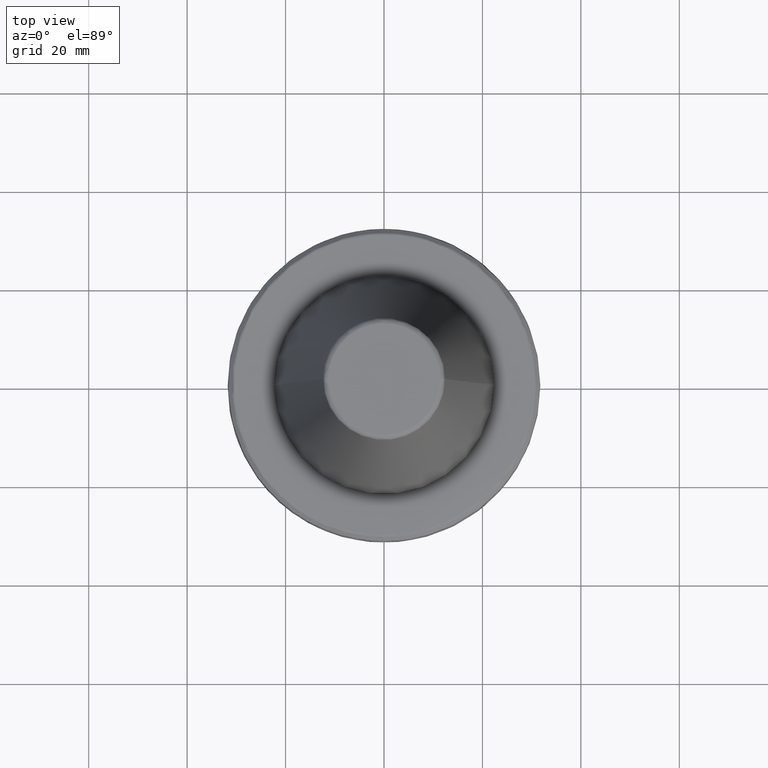
[diagram: clean part render]
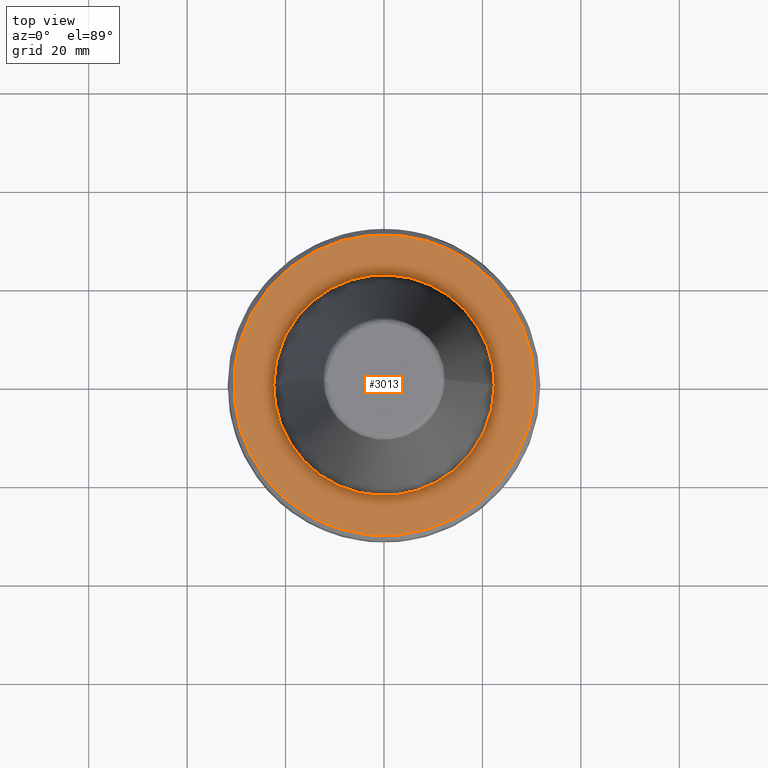
[diagram: same view with one face highlighted and labeled with its STEP entity id]
A machine part, top view. The second image highlights one B-rep face of the part: STEP entity #3013.
In plain terms, the highlighted planar face has unit normal (0, 0, 1).
Its self-contained STEP definition (entity closure, byte-faithful):
#2 = CARTESIAN_POINT ( 'NONE',  ( -4.699014149692110300, 21.90294337551173600, -3.200000000000003300 ) ) ;
#11 = CARTESIAN_POINT ( 'NONE',  ( 27.38773233231631100, 13.61336996243403300, -3.200000000000003300 ) ) ;
#14 = CARTESIAN_POINT ( 'NONE',  ( 27.52628396581385700, 13.33348093168116200, -3.200000000000003300 ) ) ;
#32 = CARTESIAN_POINT ( 'NONE',  ( 27.83926536633852300, 12.67616131522054000, -3.200000000000002800 ) ) ;
#33 = CIRCLE ( 'NONE', #2028, 30.58431457505073700 ) ;
#46 = CARTESIAN_POINT ( 'NONE',  ( 28.42400519017609300, 11.34454123681687000, -3.200000000000002800 ) ) ;
#53 = CARTESIAN_POINT ( 'NONE',  ( 28.85454279253097500, 10.17404257735812800, -3.200000000000003300 ) ) ;
#63 = B_SPLINE_CURVE_WITH_KNOTS ( 'NONE', 3,
 ( #2185, #2121, #2631, #2037, #1000, #1807, #1444, #2480, #1993, #1377, #848, #2035, #2514, #946, #1888, #2100, #1523, #2437, #1556, #2965, #2558, #1740, #835, #2226, #864, #3034, #2966, #1847, #1763, #860, #1695, #2730, #2825, #1995, #2215, #2270, #2023, #2175, #2077, #1620, #2541, #2797, #2467, #1690, #2510, #2450, #2372, #1959, #2284, #1026, #854, #1602 ),
 .UNSPECIFIED., .F., .F.,
 ( 4, 1, 1, 1, 1, 2, 2, 1, 1, 1, 1, 2, 2, 1, 1, 1, 2, 2, 2, 1, 1, 1, 2, 2, 1, 1, 1, 1, 2, 2, 1, 1, 1, 1, 2, 2, 4 ),
 ( 0.0000000000000000000, 0.06250000000000058300, 0.09375000000000081900, 0.1093750000000009300, 0.1171875000000009300, 0.1210937500000008600, 0.1250000000000008000, 0.1874999999999994200, 0.2187499999999987200, 0.2343749999999984700, 0.2421874999999982500, 0.2460937499999981700, 0.2499999999999980600, 0.3124999999999981700, 0.3437499999999981700, 0.3593749999999983300, 0.3671874999999984500, 0.3749999999999985000, 0.4999999999999995600, 0.5625000000000000000, 0.5937500000000003300, 0.6093750000000003300, 0.6171875000000004400, 0.6250000000000004400, 0.6875000000000018900, 0.7187500000000025500, 0.7343750000000030000, 0.7421875000000030000, 0.7460937500000031100, 0.7500000000000031100, 0.8125000000000035500, 0.8437500000000037700, 0.8593750000000038900, 0.8671875000000038900, 0.8710937500000037700, 0.8750000000000036600, 1.000000000000000000 ),
 .UNSPECIFIED. ) ;
#74 = ORIENTED_EDGE ( 'NONE', *, *, #554, .T. ) ;
#76 = CARTESIAN_POINT ( 'NONE',  ( 29.12613594597996800, 9.331192961517656300, -3.200000000000003300 ) ) ;
#84 = VERTEX_POINT ( 'NONE', #129 ) ;
#89 = ORIENTED_EDGE ( 'NONE', *, *, #1317, .T. ) ;
#98 = CARTESIAN_POINT ( 'NONE',  ( 29.14115916764732700, 9.284161809028004700, -3.200000000000003700 ) ) ;
#122 = CARTESIAN_POINT ( 'NONE',  ( 29.17179097118738100, 9.187465360208456400, -3.200000000000003700 ) ) ;
#129 = CARTESIAN_POINT ( 'NONE',  ( -24.35467712833948900, -18.49999999999999600, -3.200000000000002400 ) ) ;
#137 = CARTESIAN_POINT ( 'NONE',  ( 29.21737119052021500, 9.042334779816329200, -3.200000000000002800 ) ) ;
#153 = CARTESIAN_POINT ( 'NONE',  ( 29.32115263378955900, 8.703095408761718900, -3.200000000000003300 ) ) ;
#157 = CARTESIAN_POINT ( 'NONE',  ( 10.24629117988110100, 28.85918037032592300, -3.200000000000003700 ) ) ;
#160 = CARTESIAN_POINT ( 'NONE',  ( -30.26424933310271500, 4.488890650628819800, -3.200000000000003300 ) ) ;
#164 = CARTESIAN_POINT ( 'NONE',  ( 29.51842591296566500, 8.022211266093926000, -3.200000000000004600 ) ) ;
#168 = CARTESIAN_POINT ( 'NONE',  ( -29.45234853339660600, 8.333223866083306700, -3.200000000000004600 ) ) ;
#173 = CARTESIAN_POINT ( 'NONE',  ( -12.57918310160740600, 18.53468170720509500, -3.200000000000003300 ) ) ;
#174 = CARTESIAN_POINT ( 'NONE',  ( 13.20180910046462600, 27.58831379343334700, -3.200000000000003300 ) ) ;
#179 = CARTESIAN_POINT ( 'NONE',  ( 29.87181404186765500, 6.650821378524042900, -3.200000000000003700 ) ) ;
#180 = VERTEX_POINT ( 'NONE', #1646 ) ;
#185 = CARTESIAN_POINT ( 'NONE',  ( 11.69968984089582900, 28.30117587103452300, -3.200000000000003300 ) ) ;
#189 = CARTESIAN_POINT ( 'NONE',  ( 8.750000000000035500, 29.30593451889330200, -3.200000000000003700 ) ) ;
#193 = CARTESIAN_POINT ( 'NONE',  ( -25.85726144149171900, 16.33427142386347000, -3.200000000000002400 ) ) ;
#199 = CARTESIAN_POINT ( 'NONE',  ( 13.29323302808701800, 27.54438001541626900, -3.200000000000003300 ) ) ;
#205 = CARTESIAN_POINT ( 'NONE',  ( 13.15427429998630300, 27.61100680695608700, -3.200000000000003300 ) ) ;
#210 = CARTESIAN_POINT ( 'NONE',  ( 13.43017972972252500, 27.47815279795928600, -3.200000000000003700 ) ) ;
#214 = CARTESIAN_POINT ( 'NONE',  ( 30.10416084472612000, 5.458850156776770200, -3.200000000000002400 ) ) ;
#225 = CARTESIAN_POINT ( 'NONE',  ( 13.74839770495214700, 27.32133677087344400, -3.200000000000003300 ) ) ;
#231 = CARTESIAN_POINT ( 'NONE',  ( -22.03380064768137800, 4.033863417743302400, -3.200000000000005100 ) ) ;
#232 = CARTESIAN_POINT ( 'NONE',  ( 14.37953634106523800, 26.99856130462357100, -3.200000000000003700 ) ) ;
#239 = CARTESIAN_POINT ( 'NONE',  ( 15.62062435590670100, 26.31643672381107300, -3.200000000000002800 ) ) ;
#242 = CARTESIAN_POINT ( 'NONE',  ( 16.64808964168274100, 25.66906082886423200, -3.200000000000003300 ) ) ;
#244 = CARTESIAN_POINT ( 'NONE',  ( -22.05288208987398900, 3.928562165309797300, -3.200000000000004200 ) ) ;
#245 = CARTESIAN_POINT ( 'NONE',  ( 17.40274506739860900, 25.15049554832921100, -3.200000000000004200 ) ) ;
#255 = CARTESIAN_POINT ( 'NONE',  ( 17.48831565732787000, 25.09107183108732300, -3.200000000000003300 ) ) ;
#258 = CARTESIAN_POINT ( 'NONE',  ( 17.35872434408172500, 25.18089566416657000, -3.200000000000003700 ) ) ;
#260 = CARTESIAN_POINT ( 'NONE',  ( -23.77638626440863200, 19.23818591258016800, -3.200000000000002800 ) ) ;
#263 = CARTESIAN_POINT ( 'NONE',  ( 17.91356280168702900, 24.79077054223963500, -3.200000000000002800 ) ) ;
#268 = CARTESIAN_POINT ( 'NONE',  ( 18.50078877828214300, 24.36043102576069300, -3.200000000000002000 ) ) ;
#273 = CARTESIAN_POINT ( 'NONE',  ( 17.61641936751653500, 25.00162825174337700, -3.200000000000003300 ) ) ;
#277 = CARTESIAN_POINT ( 'NONE',  ( 30.23542110148163400, 4.606748291944690300, -3.200000000000003300 ) ) ;
#291 = CARTESIAN_POINT ( 'NONE',  ( 30.24244276878575700, 4.560403435829464100, -3.200000000000002800 ) ) ;
#295 = CARTESIAN_POINT ( 'NONE',  ( 8.750000000000035500, 29.30593451889330200, -3.200000000000003700 ) ) ;
#305 = CARTESIAN_POINT ( 'NONE',  ( 30.25683737115480200, 4.463908765844214700, -3.200000000000002400 ) ) ;
#311 = CARTESIAN_POINT ( 'NONE',  ( 30.27808101819946900, 4.319140586104094100, -3.200000000000003700 ) ) ;
#315 = CARTESIAN_POINT ( 'NONE',  ( -22.35325503156639800, 1.708173286752138400, -3.200000000000002800 ) ) ;
#319 = CARTESIAN_POINT ( 'NONE',  ( -4.388029393849129700, 21.96633915484307300, -3.200000000000002800 ) ) ;
#320 = CARTESIAN_POINT ( 'NONE',  ( 30.32521173240780900, 3.981164943374724300, -3.200000000000002800 ) ) ;
#338 = CARTESIAN_POINT ( 'NONE',  ( 30.40972197857451000, 3.304480764572967900, -3.200000000000003700 ) ) ;
#342 = CARTESIAN_POINT ( 'NONE',  ( 30.53973774190788100, 1.948180833597381600, -3.200000000000002800 ) ) ;
#362 = CARTESIAN_POINT ( 'NONE',  ( 19.64699716448906800, 23.46525560291689100, -3.200000000000004200 ) ) ;
#365 = CARTESIAN_POINT ( 'NONE',  ( 20.58104395212357900, 22.63882571496066400, -3.200000000000004200 ) ) ;
#373 = CARTESIAN_POINT ( 'NONE',  ( 21.33423715766128100, 21.91487604513691800, -3.200000000000003300 ) ) ;
#375 = CARTESIAN_POINT ( 'NONE',  ( 21.48502183608933100, 21.76708313658278400, -3.200000000000003700 ) ) ;
#380 = CARTESIAN_POINT ( 'NONE',  ( -24.26260340260872200, 18.63100279129394100, -3.200000000000002400 ) ) ;
#383 = CARTESIAN_POINT ( 'NONE',  ( 21.25737027114945800, 21.98943496480558600, -3.200000000000002800 ) ) ;
#387 = CARTESIAN_POINT ( 'NONE',  ( 22.22623960063043200, 21.01696416254424100, -3.200000000000003300 ) ) ;
#397 = CARTESIAN_POINT ( 'NONE',  ( 27.24785232259033300, 13.89121605744732700, -3.200000000000003700 ) ) ;
#407 = CARTESIAN_POINT ( 'NONE',  ( 21.70996927686695300, 21.54431431266114700, -3.200000000000002800 ) ) ;
#412 = CARTESIAN_POINT ( 'NONE',  ( 23.22435209595334600, 19.93203895177796200, -3.200000000000003300 ) ) ;
#419 = CARTESIAN_POINT ( 'NONE',  ( -19.50355204636557000, 23.59206616272732000, -3.200000000000002800 ) ) ;
#422 = CARTESIAN_POINT ( 'NONE',  ( -21.64494739377256500, 5.846925097341269000, -3.200000000000004200 ) ) ;
#423 = CARTESIAN_POINT ( 'NONE',  ( 27.29438307719384900, 13.79955834375779000, -3.200000000000003300 ) ) ;
#428 = CARTESIAN_POINT ( 'NONE',  ( -18.25550594148859300, 24.54047191476733000, -3.200000000000002400 ) ) ;
#429 = CARTESIAN_POINT ( 'NONE',  ( 25.53517509612518700, 16.91770336013805900, -3.200000000000003300 ) ) ;
#433 = CARTESIAN_POINT ( 'NONE',  ( -16.73340307639270800, 25.61393462947303900, -3.200000000000002400 ) ) ;
#434 = CARTESIAN_POINT ( 'NONE',  ( 24.02085740245178900, 18.95028892449413500, -3.200000000000003700 ) ) ;
#437 = CARTESIAN_POINT ( 'NONE',  ( 30.58431457505076500, 0.0000000000000000000, -3.200000000000002400 ) ) ;
#438 = CARTESIAN_POINT ( 'NONE',  ( -16.93238115507141800, 14.74595008207439100, -3.200000000000002800 ) ) ;
#442 = CARTESIAN_POINT ( 'NONE',  ( 26.42690957760426000, 15.48792760818621200, -3.200000000000004200 ) ) ;
#444 = DIRECTION ( 'NONE',  ( -1.000000000000000000, 0.0000000000000000000, 8.791504485627631900E-016 ) ) ;
#450 = CARTESIAN_POINT ( 'NONE',  ( 30.58431457505076200, 0.7806124812661845400, -3.200000000000003300 ) ) ;
#474 = CARTESIAN_POINT ( 'NONE',  ( -20.84466756721494800, 8.201342719091011100, -3.200000000000003300 ) ) ;
#482 = CARTESIAN_POINT ( 'NONE',  ( -29.12987215590598900, -9.340167935438387300, -3.200000000000003700 ) ) ;
#498 = CARTESIAN_POINT ( 'NONE',  ( -21.26570261125549500, 7.054554276574882500, -3.200000000000003300 ) ) ;
#501 = EDGE_CURVE ( 'NONE', #981, #616, #63, .T. ) ;
#505 = CIRCLE ( 'NONE', #2009, 30.58431457505073700 ) ;
#511 = CARTESIAN_POINT ( 'NONE',  ( 8.750000000000003600, -29.30593451889330600, -3.200000000000003700 ) ) ;
#534 = CARTESIAN_POINT ( 'NONE',  ( -30.58574494882476100, -0.1069271607229632700, -3.200000000000003300 ) ) ;
#535 = CARTESIAN_POINT ( 'NONE',  ( -22.12829487097974400, 3.485869751756840900, -3.200000000000003700 ) ) ;
#554 = EDGE_CURVE ( 'NONE', #2941, #2290, #1848, .T. ) ;
#574 = CARTESIAN_POINT ( 'NONE',  ( -18.85174391189674700, 12.09879233629482400, -3.200000000000003700 ) ) ;
#591 = CARTESIAN_POINT ( 'NONE',  ( -17.90272195339482400, 13.55154730279589800, -3.200000000000002800 ) ) ;
#594 = CARTESIAN_POINT ( 'NONE',  ( -22.39999999999999900, 2.743208830090071000E-015, -3.200000000000002800 ) ) ;
#595 = CARTESIAN_POINT ( 'NONE',  ( -22.40000000000000200, -1.370271814672537000, -3.200000000000003300 ) ) ;
#597 = CARTESIAN_POINT ( 'NONE',  ( -22.27534675084375200, -2.728929272683257200, -3.200000000000003700 ) ) ;
#599 = CARTESIAN_POINT ( 'NONE',  ( -22.02214483849513000, -4.097019922490617600, -3.200000000000003300 ) ) ;
#601 = CARTESIAN_POINT ( 'NONE',  ( -18.00675945254527800, 24.72355445175143300, -3.200000000000003700 ) ) ;
#604 = CARTESIAN_POINT ( 'NONE',  ( -22.01774244189307000, -4.120618964789384700, -3.200000000000004600 ) ) ;
#606 = CARTESIAN_POINT ( 'NONE',  ( -22.00934566656799900, -4.165236834190293900, -3.200000000000004200 ) ) ;
#608 = CARTESIAN_POINT ( 'NONE',  ( -21.99665153889350200, -4.232134916935223100, -3.200000000000003300 ) ) ;
#612 = CARTESIAN_POINT ( 'NONE',  ( -21.96633915484489900, -4.388029393845010300, -3.200000000000002400 ) ) ;
#613 = CARTESIAN_POINT ( 'NONE',  ( -21.90294337551515700, -4.699014149684408000, -3.200000000000002400 ) ) ;
#614 = CARTESIAN_POINT ( 'NONE',  ( 0.6848705029346544600, 22.40001621477894400, -3.200000000000003300 ) ) ;
#616 = VERTEX_POINT ( 'NONE', #881 ) ;
#617 = CARTESIAN_POINT ( 'NONE',  ( -21.76506777192550100, -5.317766869442518600, -3.200000000000003300 ) ) ;
#619 = CARTESIAN_POINT ( 'NONE',  ( -21.44498038502552400, -6.542405141275941600, -3.200000000000003700 ) ) ;
#622 = CARTESIAN_POINT ( 'NONE',  ( -21.09461488816156600, -7.570037086819792400, -3.200000000000003300 ) ) ;
#625 = CARTESIAN_POINT ( 'NONE',  ( -20.81054813477575000, -8.287526769646335700, -3.200000000000004600 ) ) ;
#627 = CARTESIAN_POINT ( 'NONE',  ( -20.79228629974538800, -8.333249188847371900, -3.200000000000003700 ) ) ;
#630 = CARTESIAN_POINT ( 'NONE',  ( -20.75691791007927700, -8.420970184736862800, -3.200000000000003700 ) ) ;
#633 = CARTESIAN_POINT ( 'NONE',  ( -20.70346857996706500, -8.552344979799164200, -3.200000000000002800 ) ) ;
#634 = CARTESIAN_POINT ( 'NONE',  ( -20.57597625708056900, -8.857439276874359300, -3.200000000000003300 ) ) ;
#639 = CARTESIAN_POINT ( 'NONE',  ( -20.30988273414216700, -9.461840305410650100, -3.200000000000003300 ) ) ;
#642 = CARTESIAN_POINT ( 'NONE',  ( -19.73326017960384200, -10.64749210002691100, -3.200000000000003300 ) ) ;
#643 = ORIENTED_EDGE ( 'NONE', *, *, #956, .T. ) ;
#644 = CARTESIAN_POINT ( 'NONE',  ( -19.16283711800834800, -11.62407890262997300, -3.200000000000004200 ) ) ;
#648 = CARTESIAN_POINT ( 'NONE',  ( -18.69693224295897600, -12.33667592247683800, -3.200000000000003300 ) ) ;
#650 = CARTESIAN_POINT ( 'NONE',  ( -18.64241366108287700, -12.41893087788208100, -3.200000000000002800 ) ) ;
#654 = CARTESIAN_POINT ( 'NONE',  ( -18.53468170720844600, -12.57918310160406400, -3.200000000000003700 ) ) ;
#655 = CARTESIAN_POINT ( 'NONE',  ( -18.37163761273726700, -12.81838125885408700, -3.200000000000003300 ) ) ;
#656 = CARTESIAN_POINT ( 'NONE',  ( -22.39999999999999900, 2.743208830090071000E-015, -3.200000000000002800 ) ) ;
#657 = CARTESIAN_POINT ( 'NONE',  ( -17.98107824668787200, -13.36824904410699900, -3.200000000000003300 ) ) ;
#659 = CARTESIAN_POINT ( 'NONE',  ( -17.15946693212253000, -14.43493962129083400, -3.200000000000003300 ) ) ;
#662 = CARTESIAN_POINT ( 'NONE',  ( -16.38581280683807900, -15.29259727032501500, -3.200000000000002800 ) ) ;
#663 = CARTESIAN_POINT ( 'NONE',  ( -14.74595008205984400, -16.93238115508596000, -3.200000000000003300 ) ) ;
#666 = CARTESIAN_POINT ( 'NONE',  ( -13.55154730280065300, -17.90272195339007800, -3.200000000000004200 ) ) ;
#668 = CARTESIAN_POINT ( 'NONE',  ( -12.17662042414134900, -18.80157304491702400, -3.200000000000003300 ) ) ;
#674 = CARTESIAN_POINT ( 'NONE',  ( -12.09879233629750000, -18.85174391189518800, -3.200000000000003300 ) ) ;
#675 = CARTESIAN_POINT ( 'NONE',  ( -11.93926672244148300, -18.95319761216261500, -3.200000000000003700 ) ) ;
#677 = CARTESIAN_POINT ( 'NONE',  ( -11.69915882733113200, -19.10378740223375300, -3.200000000000003700 ) ) ;
#679 = CARTESIAN_POINT ( 'NONE',  ( -11.13317075178937000, -19.44402825675649600, -3.200000000000003300 ) ) ;
#681 = CARTESIAN_POINT ( 'NONE',  ( -9.978249319568748300, -20.07996867656229900, -3.200000000000003300 ) ) ;
#684 = CARTESIAN_POINT ( 'NONE',  ( -8.948981895716038100, -20.54870396912782100, -3.200000000000003300 ) ) ;
#685 = CARTESIAN_POINT ( 'NONE',  ( -8.201342719090337900, -20.84466756721534600, -3.200000000000003300 ) ) ;
#692 = CARTESIAN_POINT ( 'NONE',  ( -8.160831267537076900, -20.86055755904984100, -3.200000000000003700 ) ) ;
#695 = CARTESIAN_POINT ( 'NONE',  ( -8.076228125966544300, -20.89346074650031000, -3.200000000000002800 ) ) ;
#696 = CARTESIAN_POINT ( 'NONE',  ( -7.949210498689112100, -20.94241909987511400, -3.200000000000003300 ) ) ;
#703 = CARTESIAN_POINT ( 'NONE',  ( -7.652045630590357900, -21.05388026314313900, -3.200000000000003300 ) ) ;
#707 = CARTESIAN_POINT ( 'NONE',  ( -7.054554276587077200, -21.26570261125323600, -3.200000000000003300 ) ) ;
#711 = CARTESIAN_POINT ( 'NONE',  ( -5.846925097357520000, -21.64494739376955200, -3.200000000000003300 ) ) ;
#712 = CARTESIAN_POINT ( 'NONE',  ( -4.790134707349893400, -21.89390021243405800, -3.200000000000003300 ) ) ;
#715 = CARTESIAN_POINT ( 'NONE',  ( -4.053654801115866000, -22.03016962878430400, -3.200000000000003300 ) ) ;
#720 = CARTESIAN_POINT ( 'NONE',  ( -4.033857983397038700, -22.03380165318767700, -3.200000000000003300 ) ) ;
#722 = CARTESIAN_POINT ( 'NONE',  ( -3.991735474929086100, -22.04147173132551900, -3.200000000000004200 ) ) ;
#725 = CARTESIAN_POINT ( 'NONE',  ( -3.928543594394218200, -22.05288552601365700, -3.200000000000003700 ) ) ;
#726 = CARTESIAN_POINT ( 'NONE',  ( -3.781039048315599300, -22.07887845598923700, -3.200000000000003300 ) ) ;
#729 = CARTESIAN_POINT ( 'NONE',  ( -3.485802656836038500, -22.12830728541986500, -3.200000000000002800 ) ) ;
#733 = CARTESIAN_POINT ( 'NONE',  ( -2.894420676587548900, -22.21693682219911600, -3.200000000000003300 ) ) ;
#734 = CARTESIAN_POINT ( 'NONE',  ( -1.708019926933151300, -22.35328340742955100, -3.200000000000003700 ) ) ;
#738 = CARTESIAN_POINT ( 'NONE',  ( -0.6848705029595145700, -22.40001621477894400, -3.200000000000003700 ) ) ;
#743 = CARTESIAN_POINT ( 'NONE',  ( 1.369741005919025600, -22.39996757044212200, -3.200000000000002400 ) ) ;
#746 = CARTESIAN_POINT ( 'NONE',  ( 2.729104585128947900, -22.27531430456797800, -3.200000000000003300 ) ) ;
#749 = CARTESIAN_POINT ( 'NONE',  ( 4.097017183233652400, -22.02214534546819300, -3.200000000000003700 ) ) ;
#750 = CARTESIAN_POINT ( 'NONE',  ( 4.120618964788525000, -22.01774244189322300, -3.200000000000004200 ) ) ;
#753 = CARTESIAN_POINT ( 'NONE',  ( 4.165236834188593000, -22.00934566656831500, -3.200000000000002800 ) ) ;
#755 = CARTESIAN_POINT ( 'NONE',  ( 4.232134916932282400, -21.99665153889404900, -3.200000000000002800 ) ) ;
#758 = CARTESIAN_POINT ( 'NONE',  ( 4.388029393839321600, -21.96633915484595100, -3.200000000000003300 ) ) ;
#762 = CARTESIAN_POINT ( 'NONE',  ( 4.699014149673790700, -21.90294337551711800, -3.200000000000002800 ) ) ;
#768 = CARTESIAN_POINT ( 'NONE',  ( 5.317766869424311000, -21.76506777192885900, -3.200000000000003300 ) ) ;
#797 = CARTESIAN_POINT ( 'NONE',  ( -25.94001894739803400, 16.20252111302018600, -3.200000000000003300 ) ) ;
#818 = CARTESIAN_POINT ( 'NONE',  ( 14.43493962127408600, -17.15946693213492600, -3.200000000000003300 ) ) ;
#820 = CARTESIAN_POINT ( 'NONE',  ( 15.29259727031543800, -16.38581280684516300, -3.200000000000003300 ) ) ;
#826 = CARTESIAN_POINT ( 'NONE',  ( -28.24048383202959700, -11.74385340892200000, -3.200000000000003300 ) ) ;
#835 = CARTESIAN_POINT ( 'NONE',  ( 21.03152593329596300, -22.20554153729255000, -3.200000000000004200 ) ) ;
#848 = CARTESIAN_POINT ( 'NONE',  ( 14.91898429065702600, -26.72045296950977200, -3.200000000000004200 ) ) ;
#854 = CARTESIAN_POINT ( 'NONE',  ( 30.58431457505076900, -1.561562219138746600, -3.200000000000003300 ) ) ;
#860 = CARTESIAN_POINT ( 'NONE',  ( 26.85489300923698900, -14.63881711982947200, -3.200000000000003300 ) ) ;
#864 = CARTESIAN_POINT ( 'NONE',  ( 22.40114452915676000, -20.89129424433190300, -3.200000000000004200 ) ) ;
#881 = CARTESIAN_POINT ( 'NONE',  ( 30.58431457505076500, 0.0000000000000000000, -3.200000000000002400 ) ) ;
#886 = B_SPLINE_CURVE_WITH_KNOTS ( 'NONE', 3,
 ( #2817, #2636, #315, #1786, #535, #2017, #244, #2612, #231, #1440, #1122, #422, #498, #2218, #1462, #2447, #2569, #474, #1579, #2678, #1590, #1239, #2732, #574, #2134, #591, #438, #1113, #1824, #1952, #1918, #173, #2998, #2103, #2907, #1289, #2565, #938, #1771, #2115, #2342, #2222, #3076, #1448, #2773, #2, #319, #923, #2554, #1206, #1528, #2858, #2714, #614, #903, #3083, #3081, #3077, #3074, #3072, #3069, #3068, #3065, #3063, #3055, #3051, #3047, #3045, #3036, #3031, #3029, #3027, #3023, #3019, #3015, #3008, #3005, #2999, #2996, #2990, #2986, #2982, #2972, #2967, #2964, #2957, #2953, #2946, #2939, #2930, #2924, #2921, #2914, #2910, #2905, #2901, #2898, #2894, #2890, #2886, #2882, #2880, #2871, #2865, #2863, #2861 ),
 .UNSPECIFIED., .F., .F.,
 ( 4, 1, 1, 1, 1, 1, 2, 2, 1, 1, 1, 1, 2, 2, 1, 1, 1, 2, 2, 2, 1, 1, 1, 2, 2, 1, 1, 1, 1, 2, 2, 1, 1, 1, 1, 1, 2, 2, 2, 1, 1, 1, 1, 1, 2, 2, 1, 1, 1, 1, 2, 2, 1, 1, 1, 2, 2, 2, 1, 1, 1, 2, 2, 1, 1, 1, 1, 2, 2, 1, 1, 1, 1, 1, 2, 2, 4 ),
 ( 0.0000000000000000000, 0.03124999999999894500, 0.04687499999999843200, 0.05468749999999818900, 0.05859374999999806400, 0.06054687499999800200, 0.06152343749999798100, 0.06249999999999794600, 0.09374999999999758500, 0.1093749999999973800, 0.1171874999999972500, 0.1210937499999971600, 0.1230468749999971600, 0.1249999999999971400, 0.1562499999999969500, 0.1718749999999969200, 0.1796874999999969200, 0.1835937499999970300, 0.1874999999999971100, 0.2499999999999980000, 0.2812499999999983900, 0.2968749999999985600, 0.3046874999999987200, 0.3085937499999987800, 0.3124999999999988900, 0.3437499999999991100, 0.3593749999999992200, 0.3671874999999993300, 0.3710937499999993900, 0.3730468749999993900, 0.3749999999999993900, 0.4062499999999988900, 0.4218749999999986100, 0.4296874999999985000, 0.4335937499999983900, 0.4355468749999983300, 0.4365234374999983300, 0.4374999999999982800, 0.4999999999999980000, 0.5312499999999977800, 0.5468749999999977800, 0.5546874999999976700, 0.5585937499999976700, 0.5605468749999976700, 0.5615234374999975600, 0.5624999999999975600, 0.5937499999999977800, 0.6093749999999980000, 0.6171874999999980000, 0.6210937499999981100, 0.6230468749999982200, 0.6249999999999982200, 0.6562499999999984500, 0.6718749999999986700, 0.6796874999999986700, 0.6835937499999987800, 0.6874999999999988900, 0.7499999999999980000, 0.7812499999999975600, 0.7968749999999974500, 0.8046874999999973400, 0.8085937499999973400, 0.8124999999999973400, 0.8437499999999973400, 0.8593749999999974500, 0.8671874999999974500, 0.8710937499999974500, 0.8730468749999974500, 0.8749999999999973400, 0.9062499999999981100, 0.9218749999999986700, 0.9296874999999987800, 0.9335937499999988900, 0.9355468749999990000, 0.9365234374999988900, 0.9374999999999988900, 1.000000000000000000 ),
 .UNSPECIFIED. ) ;
#896 = EDGE_LOOP ( 'NONE', ( #1609, #2263, #89, #1399, #74, #1370, #2959 ) ) ;
#903 = CARTESIAN_POINT ( 'NONE',  ( 1.708019926889657400, 22.35328340742955100, -3.200000000000003300 ) ) ;
#913 = EDGE_CURVE ( 'NONE', #2941, #84, #2224, .T. ) ;
#923 = CARTESIAN_POINT ( 'NONE',  ( -4.232134916937351200, 21.99665153889256400, -3.200000000000003300 ) ) ;
#938 = CARTESIAN_POINT ( 'NONE',  ( -8.857439276880176800, 20.57597625707865100, -3.200000000000003300 ) ) ;
#946 = CARTESIAN_POINT ( 'NONE',  ( 17.02330348438782800, -25.40916637816813400, -3.200000000000003300 ) ) ;
#954 = CARTESIAN_POINT ( 'NONE',  ( -27.05153356262100300, -14.47569103931619200, -3.200000000000004200 ) ) ;
#956 = EDGE_CURVE ( 'NONE', #1378, #2040, #2353, .T. ) ;
#979 = CARTESIAN_POINT ( 'NONE',  ( -29.39627059819993700, -8.442993445765720800, -3.200000000000004200 ) ) ;
#981 = VERTEX_POINT ( 'NONE', #511 ) ;
#990 = CARTESIAN_POINT ( 'NONE',  ( 22.40000000000000200, -0.6849581371417888800, -3.200000000000003700 ) ) ;
#1000 = CARTESIAN_POINT ( 'NONE',  ( 12.49063015166474800, -27.91867295084679100, -3.200000000000003700 ) ) ;
#1008 = CARTESIAN_POINT ( 'NONE',  ( -10.51070166330259200, -28.78023418526411000, -3.200000000000003300 ) ) ;
#1011 = CARTESIAN_POINT ( 'NONE',  ( -12.21006217782009500, -28.10145510426028900, -3.200000000000002800 ) ) ;
#1014 = CARTESIAN_POINT ( 'NONE',  ( -18.50000000000001100, -24.35467712833946100, -3.200000000000002400 ) ) ;
#1026 = CARTESIAN_POINT ( 'NONE',  ( 30.46544302000310000, -3.113852862822880300, -3.200000000000004200 ) ) ;
#1032 = B_SPLINE_CURVE_WITH_KNOTS ( 'NONE', 3,
 ( #437, #450, #342, #338, #320, #311, #305, #291, #277, #214, #179, #164, #153, #137, #122, #98, #76, #53, #46, #32, #14, #11, #423, #397, #442, #429, #434, #412, #387, #407, #375, #373, #383, #365, #362, #268, #263, #273, #255, #245, #258, #242, #239, #232, #225, #210, #199, #174, #205, #185, #157, #189 ),
 .UNSPECIFIED., .F., .F.,
 ( 4, 1, 1, 1, 1, 2, 2, 1, 1, 1, 1, 2, 2, 1, 1, 1, 2, 2, 2, 1, 1, 1, 2, 2, 1, 1, 1, 1, 2, 2, 1, 1, 1, 1, 2, 2, 4 ),
 ( 0.0000000000000000000, 0.06249999999999900100, 0.09374999999999850100, 0.1093749999999982500, 0.1171874999999981300, 0.1210937499999980600, 0.1249999999999980000, 0.1874999999999973900, 0.2187499999999970000, 0.2343749999999968100, 0.2421874999999967000, 0.2460937499999967200, 0.2499999999999967200, 0.3124999999999976100, 0.3437499999999980000, 0.3593749999999981100, 0.3671874999999981100, 0.3749999999999981100, 0.4999999999999963400, 0.5624999999999955600, 0.5937499999999951200, 0.6093749999999950000, 0.6171874999999950000, 0.6249999999999950000, 0.6874999999999958900, 0.7187499999999962300, 0.7343749999999965600, 0.7421874999999966700, 0.7460937499999968900, 0.7499999999999970000, 0.8124999999999966700, 0.8437499999999963400, 0.8593749999999962300, 0.8671874999999962300, 0.8710937499999963400, 0.8749999999999963400, 1.000000000000000000 ),
 .UNSPECIFIED. ) ;
#1040 = CARTESIAN_POINT ( 'NONE',  ( 21.89390021243320900, -4.790134707354472900, -3.200000000000002800 ) ) ;
#1041 = CARTESIAN_POINT ( 'NONE',  ( -30.36703951688853600, -3.848954711222602600, -3.200000000000003300 ) ) ;
#1051 = CARTESIAN_POINT ( 'NONE',  ( 6.542405141251660600, -21.44498038503001800, -3.200000000000003300 ) ) ;
#1060 = CARTESIAN_POINT ( 'NONE',  ( 12.41893087787976500, -18.64241366108458600, -3.200000000000002800 ) ) ;
#1083 = CARTESIAN_POINT ( 'NONE',  ( 22.39999999999999900, 0.0000000000000000000, -3.200000000000002800 ) ) ;
#1100 = CARTESIAN_POINT ( 'NONE',  ( 18.95319761216143900, -11.93926672244327800, -3.200000000000003300 ) ) ;
#1102 = CARTESIAN_POINT ( 'NONE',  ( 12.81838125884675600, -18.37163761274268800, -3.200000000000003300 ) ) ;
#1113 = CARTESIAN_POINT ( 'NONE',  ( -15.29259727033228500, 16.38581280683081000, -3.200000000000004600 ) ) ;
#1122 = CARTESIAN_POINT ( 'NONE',  ( -21.89390021243578500, 4.790134707340608400, -3.200000000000003700 ) ) ;
#1130 = CARTESIAN_POINT ( 'NONE',  ( 0.0000000000000000000, -1.695656695567372900E-016, -3.200000000000003300 ) ) ;
#1141 = VERTEX_POINT ( 'NONE', #295 ) ;
#1148 = CARTESIAN_POINT ( 'NONE',  ( 9.461840305391049800, -20.30988273415392000, -3.200000000000002400 ) ) ;
#1153 = CARTESIAN_POINT ( 'NONE',  ( -29.60519698499863500, -7.688059179553588000, -3.200000000000003300 ) ) ;
#1154 = CARTESIAN_POINT ( 'NONE',  ( 8.857439276862924900, -20.57597625708742200, -3.200000000000003700 ) ) ;
#1203 = CARTESIAN_POINT ( 'NONE',  ( -28.05674127324226300, -12.17478045277748000, -3.200000000000003300 ) ) ;
#1206 = CARTESIAN_POINT ( 'NONE',  ( -4.120618964790005600, 22.01774244189279300, -3.200000000000004200 ) ) ;
#1239 = CARTESIAN_POINT ( 'NONE',  ( -19.10378740223865900, 11.69915882732268200, -3.200000000000003300 ) ) ;
#1289 = CARTESIAN_POINT ( 'NONE',  ( -10.64749210004020900, 19.73326017959945800, -3.200000000000003300 ) ) ;
#1315 = CARTESIAN_POINT ( 'NONE',  ( -17.03706203158652200, -25.46593605708777400, -3.200000000000003300 ) ) ;
#1317 = EDGE_CURVE ( 'NONE', #180, #84, #1865, .T. ) ;
#1320 = CARTESIAN_POINT ( 'NONE',  ( -15.48610090928483800, -26.43773944750343900, -3.200000000000003700 ) ) ;
#1332 = CARTESIAN_POINT ( 'NONE',  ( -30.54018886217401300, 1.756429892695191100, -3.200000000000003300 ) ) ;
#1334 = CARTESIAN_POINT ( 'NONE',  ( -30.46677238502211100, 2.680059272107268200, -3.200000000000003700 ) ) ;
#1348 = AXIS2_PLACEMENT_3D ( 'NONE', #1715, #2039, #2916 ) ;
#1368 = AXIS2_PLACEMENT_3D ( 'NONE', #1130, #2995, #2984 ) ;
#1370 = ORIENTED_EDGE ( 'NONE', *, *, #1548, .F. ) ;
#1377 = CARTESIAN_POINT ( 'NONE',  ( 13.84330885027150300, -27.28410426008013100, -3.200000000000004200 ) ) ;
#1378 = VERTEX_POINT ( 'NONE', #1083 ) ;
#1399 = ORIENTED_EDGE ( 'NONE', *, *, #913, .F. ) ;
#1404 = CARTESIAN_POINT ( 'NONE',  ( -13.53928854119992500, 27.43651020383373100, -3.200000000000003300 ) ) ;
#1431 = CARTESIAN_POINT ( 'NONE',  ( 16.93238115510510200, -14.74595008204568100, -3.200000000000002400 ) ) ;
#1438 = CARTESIAN_POINT ( 'NONE',  ( -20.45246270161813100, 22.77429056695521900, -3.200000000000003700 ) ) ;
#1440 = CARTESIAN_POINT ( 'NONE',  ( -22.03016962878425400, 4.053654801116158200, -3.200000000000003700 ) ) ;
#1444 = CARTESIAN_POINT ( 'NONE',  ( 12.93363446211676000, -27.71504625243736400, -3.200000000000003300 ) ) ;
#1448 = CARTESIAN_POINT ( 'NONE',  ( -6.542405141293531100, 21.44498038501770800, -3.200000000000003300 ) ) ;
#1451 = CARTESIAN_POINT ( 'NONE',  ( -29.86976700630908300, -6.624788100354390300, -3.200000000000002800 ) ) ;
#1462 = CARTESIAN_POINT ( 'NONE',  ( -20.94241909987582100, 7.949210498685300100, -3.200000000000003300 ) ) ;
#1463 = EDGE_CURVE ( 'NONE', #180, #1141, #33, .T. ) ;
#1469 = EDGE_CURVE ( 'NONE', #2040, #1378, #886, .T. ) ;
#1505 = CARTESIAN_POINT ( 'NONE',  ( -28.14951867898409100, -11.95872026362524600, -3.200000000000003700 ) ) ;
#1523 = CARTESIAN_POINT ( 'NONE',  ( 17.27398592321871400, -25.23910393720905200, -3.200000000000003300 ) ) ;
#1528 = CARTESIAN_POINT ( 'NONE',  ( -4.097017183233237600, 22.02214534546820300, -3.200000000000004200 ) ) ;
#1531 = CARTESIAN_POINT ( 'NONE',  ( 8.287526769647206100, -20.81054813477557300, -3.200000000000002800 ) ) ;
#1548 = EDGE_CURVE ( 'NONE', #981, #2290, #505, .T. ) ;
#1556 = CARTESIAN_POINT ( 'NONE',  ( 19.00230350498631200, -23.99031363756920500, -3.200000000000002800 ) ) ;
#1570 = CARTESIAN_POINT ( 'NONE',  ( 17.90272195338066700, -13.55154730281504500, -3.200000000000003300 ) ) ;
#1579 = CARTESIAN_POINT ( 'NONE',  ( -20.54870396913424800, 8.948981895704992700, -3.200000000000004200 ) ) ;
#1585 = CARTESIAN_POINT ( 'NONE',  ( -17.50055599938205500, 25.08445269892678600, -3.200000000000002800 ) ) ;
#1587 = CARTESIAN_POINT ( 'NONE',  ( 22.03380064768137800, -4.033863417743300600, -3.200000000000005100 ) ) ;
#1590 = CARTESIAN_POINT ( 'NONE',  ( -19.44402825676491300, 11.13317075177488400, -3.200000000000002800 ) ) ;
#1597 = CARTESIAN_POINT ( 'NONE',  ( -23.17496761740861200, 19.96233499371088600, -3.200000000000003300 ) ) ;
#1602 = CARTESIAN_POINT ( 'NONE',  ( 30.58431457505076500, 0.0000000000000000000, -3.200000000000002400 ) ) ;
#1609 = ORIENTED_EDGE ( 'NONE', *, *, #2495, .T. ) ;
#1610 = CARTESIAN_POINT ( 'NONE',  ( -28.31907149282430000, 11.80488663222952500, -3.200000000000003300 ) ) ;
#1620 = CARTESIAN_POINT ( 'NONE',  ( 29.07806852478255200, -9.479920520524320400, -3.200000000000003300 ) ) ;
#1633 = CARTESIAN_POINT ( 'NONE',  ( 22.21691554030176600, -2.894535696451787700, -3.200000000000003700 ) ) ;
#1646 = CARTESIAN_POINT ( 'NONE',  ( -8.749999999999991100, 29.30593451889331300, -3.200000000000002800 ) ) ;
#1649 = CARTESIAN_POINT ( 'NONE',  ( -23.67667543167917900, 19.36078262650630300, -3.200000000000003300 ) ) ;
#1658 = CARTESIAN_POINT ( 'NONE',  ( 7.570037086805924400, -21.09461488816414500, -3.200000000000004600 ) ) ;
#1671 = CARTESIAN_POINT ( 'NONE',  ( -24.35467712833948900, -18.49999999999999600, -3.200000000000002400 ) ) ;
#1690 = CARTESIAN_POINT ( 'NONE',  ( 29.98396483372960800, -6.054356345076334900, -3.200000000000003300 ) ) ;
#1695 = CARTESIAN_POINT ( 'NONE',  ( 27.00399422413344300, -14.35953925149365800, -3.200000000000002400 ) ) ;
#1715 = CARTESIAN_POINT ( 'NONE',  ( 2.081668171172171400E-014, 0.0000000000000000000, -3.199999999999973500 ) ) ;
#1728 = ORIENTED_EDGE ( 'NONE', *, *, #1469, .T. ) ;
#1734 = CARTESIAN_POINT ( 'NONE',  ( 20.54870396912526700, -8.948981895719937200, -3.200000000000003300 ) ) ;
#1740 = CARTESIAN_POINT ( 'NONE',  ( 20.87982665236080100, -22.34825637511706700, -3.200000000000002800 ) ) ;
#1743 = CARTESIAN_POINT ( 'NONE',  ( -30.47970956005925200, 2.528533460620644700, -3.200000000000003700 ) ) ;
#1747 = CARTESIAN_POINT ( 'NONE',  ( 22.35325503156640500, -1.708173286752136400, -3.200000000000003700 ) ) ;
#1763 = CARTESIAN_POINT ( 'NONE',  ( 26.49728736114817500, -15.28437999708491700, -3.200000000000004200 ) ) ;
#1769 = DIRECTION ( 'NONE',  ( -8.728168432587708200E-016, -0.0000000000000000000, -1.000000000000000000 ) ) ;
#1771 = CARTESIAN_POINT ( 'NONE',  ( -8.552344979802288800, 20.70346857996603900, -3.200000000000003700 ) ) ;
#1786 = CARTESIAN_POINT ( 'NONE',  ( -22.21691554030176600, 2.894535696451789400, -3.200000000000002800 ) ) ;
#1796 = CARTESIAN_POINT ( 'NONE',  ( 20.94241909987477300, -7.949210498690993300, -3.200000000000003300 ) ) ;
#1803 = CARTESIAN_POINT ( 'NONE',  ( -28.44688173161173200, -11.24038425294348200, -3.200000000000003300 ) ) ;
#1807 = CARTESIAN_POINT ( 'NONE',  ( 12.80099507031209800, -27.77681930598248900, -3.200000000000002400 ) ) ;
#1810 = CARTESIAN_POINT ( 'NONE',  ( 20.84466756721549900, -8.201342719090085600, -3.200000000000003300 ) ) ;
#1824 = CARTESIAN_POINT ( 'NONE',  ( -14.43493962130356300, 17.15946693210979700, -3.200000000000003300 ) ) ;
#1842 = CARTESIAN_POINT ( 'NONE',  ( -28.08831770798318700, -12.10176357993493600, -3.200000000000003700 ) ) ;
#1847 = CARTESIAN_POINT ( 'NONE',  ( 25.74326481164887400, -16.55116382281662300, -3.200000000000003300 ) ) ;
#1848 = B_SPLINE_CURVE_WITH_KNOTS ( 'NONE', 3,
 ( #1014, #1315, #1320, #1011, #1008, #2055 ),
 .UNSPECIFIED., .F., .F.,
 ( 4, 2, 4 ),
 ( 0.0000000000000000000, 0.5000000000000000000, 1.000000000000000000 ),
 .UNSPECIFIED. ) ;
#1865 = B_SPLINE_CURVE_WITH_KNOTS ( 'NONE', 3,
 ( #2940, #1985, #2811, #1404, #3078, #2238, #2720, #2259, #2676, #2509, #433, #1585, #601, #428, #419, #1438, #1898, #2559, #1597, #2383, #1649, #260, #380, #1904, #2256, #2993, #193, #797, #2794, #2709, #1610, #168, #2145, #160, #2277, #1957, #1334, #1743, #2703, #1332, #2866, #534, #2904, #2460, #2093, #1041, #2948, #1451, #1153, #2803, #979, #2337, #482, #2135, #1803, #826, #1505, #1842, #1203, #954, #2163, #1671 ),
 .UNSPECIFIED., .F., .F.,
 ( 4, 1, 1, 1, 1, 2, 2, 1, 2, 2, 2, 1, 1, 2, 2, 1, 1, 1, 2, 2, 2, 1, 1, 1, 1, 2, 2, 1, 2, 2, 2, 1, 1, 2, 2, 1, 1, 1, 2, 2, 4 ),
 ( 0.0000000000000000000, 0.06250000000000077700, 0.09375000000000116600, 0.1093750000000013600, 0.1171875000000014200, 0.1210937500000014400, 0.1250000000000014700, 0.1562500000000014400, 0.1718750000000015000, 0.1875000000000015500, 0.2500000000000021100, 0.2812500000000023300, 0.2968750000000023300, 0.3046875000000024400, 0.3125000000000025500, 0.3437500000000030500, 0.3593750000000033300, 0.3671875000000034400, 0.3710937500000034400, 0.3750000000000034400, 0.5000000000000022200, 0.5625000000000015500, 0.5937500000000011100, 0.6093750000000008900, 0.6171875000000007800, 0.6210937500000007800, 0.6250000000000006700, 0.6562500000000005600, 0.6718750000000005600, 0.6875000000000005600, 0.7500000000000005600, 0.7812500000000004400, 0.7968750000000004400, 0.8046875000000004400, 0.8125000000000004400, 0.8437500000000005600, 0.8593750000000006700, 0.8671875000000006700, 0.8710937500000007800, 0.8750000000000007800, 1.000000000000000000 ),
 .UNSPECIFIED. ) ;
#1888 = CARTESIAN_POINT ( 'NONE',  ( 17.14932757286962700, -25.32397030503210500, -3.200000000000003700 ) ) ;
#1898 = CARTESIAN_POINT ( 'NONE',  ( -21.79932372883668300, 21.46121072406587200, -3.200000000000003700 ) ) ;
#1904 = CARTESIAN_POINT ( 'NONE',  ( -24.82288649367489300, 17.88588114721277500, -3.200000000000003300 ) ) ;
#1918 = CARTESIAN_POINT ( 'NONE',  ( -12.81838125885966000, 18.37163761273170000, -3.200000000000003700 ) ) ;
#1920 = CARTESIAN_POINT ( 'NONE',  ( 20.07996867655782900, -9.978249319575578400, -3.200000000000002800 ) ) ;
#1952 = CARTESIAN_POINT ( 'NONE',  ( -13.36824904411653800, 17.98107824667833300, -3.200000000000003300 ) ) ;
#1957 = CARTESIAN_POINT ( 'NONE',  ( -30.44653720226508800, 2.907181702331620400, -3.200000000000003300 ) ) ;
#1959 = CARTESIAN_POINT ( 'NONE',  ( 30.21212539776460900, -4.757131534843550100, -3.200000000000003300 ) ) ;
#1969 = CARTESIAN_POINT ( 'NONE',  ( 2.081668171172171400E-014, 0.0000000000000000000, -3.199999999999973500 ) ) ;
#1985 = CARTESIAN_POINT ( 'NONE',  ( -9.916519147391655400, 28.95764183663483100, -3.200000000000004600 ) ) ;
#1993 = CARTESIAN_POINT ( 'NONE',  ( 13.06437642884242900, -27.65365956857776200, -3.200000000000004200 ) ) ;
#1995 = CARTESIAN_POINT ( 'NONE',  ( 27.58067624823625900, -13.24394569610855000, -3.200000000000004200 ) ) ;
#2009 = AXIS2_PLACEMENT_3D ( 'NONE', #2653, #2651, #2647 ) ;
#2017 = CARTESIAN_POINT ( 'NONE',  ( -22.07887180539631800, 3.781074992023178100, -3.200000000000003700 ) ) ;
#2023 = CARTESIAN_POINT ( 'NONE',  ( 28.87952157735525600, -10.07230210980091900, -3.200000000000002800 ) ) ;
#2028 = AXIS2_PLACEMENT_3D ( 'NONE', #1969, #1769, #444 ) ;
#2035 = CARTESIAN_POINT ( 'NONE',  ( 16.13194971530963100, -25.98948903614432700, -3.200000000000003300 ) ) ;
#2037 = CARTESIAN_POINT ( 'NONE',  ( 11.86640829662405800, -28.19324632027800300, -3.200000000000002800 ) ) ;
#2039 = DIRECTION ( 'NONE',  ( -8.728168432587708200E-016, -0.0000000000000000000, -1.000000000000000000 ) ) ;
#2040 = VERTEX_POINT ( 'NONE', #656 ) ;
#2055 = CARTESIAN_POINT ( 'NONE',  ( -8.749999999999971600, -29.30593451889331600, -3.200000000000003700 ) ) ;
#2057 = CARTESIAN_POINT ( 'NONE',  ( 18.85174391189457700, -12.09879233629844300, -3.200000000000003700 ) ) ;
#2077 = CARTESIAN_POINT ( 'NONE',  ( 29.04560989629169000, -9.578915174256092500, -3.200000000000005100 ) ) ;
#2093 = CARTESIAN_POINT ( 'NONE',  ( -30.49913331156338700, -2.603266312773055500, -3.200000000000003700 ) ) ;
#2100 = CARTESIAN_POINT ( 'NONE',  ( 17.23321866383427500, -25.26695455758119000, -3.200000000000002800 ) ) ;
#2103 = CARTESIAN_POINT ( 'NONE',  ( -12.33667592247588900, 18.69693224295928500, -3.200000000000003300 ) ) ;
#2115 = CARTESIAN_POINT ( 'NONE',  ( -8.420970184738692400, 20.75691791007867700, -3.200000000000002800 ) ) ;
#2121 = CARTESIAN_POINT ( 'NONE',  ( 9.497984010101872000, -29.08260568820298500, -3.200000000000003300 ) ) ;
#2126 = CARTESIAN_POINT ( 'NONE',  ( 22.03016962878432800, -4.053654801115721200, -3.200000000000003300 ) ) ;
#2134 = CARTESIAN_POINT ( 'NONE',  ( -18.80157304491672900, 12.17662042414164600, -3.200000000000003700 ) ) ;
#2135 = CARTESIAN_POINT ( 'NONE',  ( -28.83626103401298500, -10.22499329430268300, -3.200000000000003300 ) ) ;
#2145 = CARTESIAN_POINT ( 'NONE',  ( -29.91282126791749700, 6.576107746296298000, -3.200000000000002800 ) ) ;
#2156 = FACE_BOUND ( 'NONE', #3046, .T. ) ;
#2163 = CARTESIAN_POINT ( 'NONE',  ( -25.82766579422533900, -16.56085603398090100, -3.200000000000003700 ) ) ;
#2167 = CARTESIAN_POINT ( 'NONE',  ( 11.62407890261503100, -19.16283711801731500, -3.200000000000004200 ) ) ;
#2171 = FACE_OUTER_BOUND ( 'NONE', #896, .T. ) ;
#2175 = CARTESIAN_POINT ( 'NONE',  ( 28.99655467841194000, -9.727253638745931900, -3.200000000000003700 ) ) ;
#2185 = CARTESIAN_POINT ( 'NONE',  ( 8.750000000000003600, -29.30593451889330600, -3.200000000000003700 ) ) ;
#2215 = CARTESIAN_POINT ( 'NONE',  ( 28.10533704290509100, -12.11250377900051900, -3.200000000000003300 ) ) ;
#2218 = CARTESIAN_POINT ( 'NONE',  ( -21.05388026314446000, 7.652045630583237400, -3.200000000000003300 ) ) ;
#2222 = CARTESIAN_POINT ( 'NONE',  ( -8.287526769645706900, 20.81054813477602400, -3.200000000000003700 ) ) ;
#2224 = CIRCLE ( 'NONE', #1348, 30.58431457505073700 ) ;
#2226 = CARTESIAN_POINT ( 'NONE',  ( 21.10604030069456300, -22.13473294561739700, -3.200000000000003700 ) ) ;
#2235 = CARTESIAN_POINT ( 'NONE',  ( -8.749999999999971600, -29.30593451889331600, -3.200000000000003700 ) ) ;
#2238 = CARTESIAN_POINT ( 'NONE',  ( -14.94335966607875200, 26.68593816532905900, -3.200000000000003700 ) ) ;
#2256 = CARTESIAN_POINT ( 'NONE',  ( -25.43598951906440300, 16.98769424001049400, -3.200000000000003300 ) ) ;
#2259 = CARTESIAN_POINT ( 'NONE',  ( -15.27351905694524000, 26.49765628487160600, -3.200000000000003300 ) ) ;
#2263 = ORIENTED_EDGE ( 'NONE', *, *, #1463, .F. ) ;
#2265 = CARTESIAN_POINT ( 'NONE',  ( 21.64494739376806700, -5.846925097365533100, -3.200000000000003700 ) ) ;
#2270 = CARTESIAN_POINT ( 'NONE',  ( 28.63517167122618900, -10.75810060089226500, -3.200000000000003700 ) ) ;
#2273 = CARTESIAN_POINT ( 'NONE',  ( 20.89346074650010700, -8.076228125967638500, -3.200000000000002800 ) ) ;
#2277 = CARTESIAN_POINT ( 'NONE',  ( -30.39351583442301300, 3.435970030482742700, -3.200000000000002800 ) ) ;
#2284 = CARTESIAN_POINT ( 'NONE',  ( 30.22027043771728600, -4.705091276934633800, -3.200000000000003300 ) ) ;
#2290 = VERTEX_POINT ( 'NONE', #2235 ) ;
#2337 = CARTESIAN_POINT ( 'NONE',  ( -29.35224666532824100, -8.594763330019311800, -3.200000000000003700 ) ) ;
#2342 = CARTESIAN_POINT ( 'NONE',  ( -8.333249188848311600, 20.79228629974507200, -3.200000000000003300 ) ) ;
#2353 = B_SPLINE_CURVE_WITH_KNOTS ( 'NONE', 3,
 ( #2781, #990, #1747, #1633, #2956, #2667, #2624, #2587, #1587, #2126, #1040, #2265, #2382, #2492, #1796, #2273, #2474, #1810, #1734, #1920, #2821, #2517, #1100, #2057, #2896, #1570, #1431, #820, #818, #2528, #1102, #2354, #1060, #2983, #2167, #2700, #1148, #1154, #2789, #2842, #3052, #1531, #1658, #1051, #768, #762, #758, #755, #753, #750, #749, #746, #743, #738, #734, #733, #729, #726, #725, #722, #720, #715, #712, #711, #707, #703, #696, #695, #692, #685, #684, #681, #679, #677, #675, #674, #668, #666, #663, #662, #659, #657, #655, #654, #650, #648, #644, #642, #639, #634, #633, #630, #627, #625, #622, #619, #617, #613, #612, #608, #606, #604, #599, #597, #595, #594 ),
 .UNSPECIFIED., .F., .F.,
 ( 4, 1, 1, 1, 1, 1, 2, 2, 1, 1, 1, 1, 2, 2, 1, 1, 1, 2, 2, 2, 1, 1, 1, 2, 2, 1, 1, 1, 1, 2, 2, 1, 1, 1, 1, 1, 2, 2, 2, 1, 1, 1, 1, 1, 2, 2, 1, 1, 1, 1, 2, 2, 1, 1, 1, 2, 2, 2, 1, 1, 1, 2, 2, 1, 1, 1, 1, 2, 2, 1, 1, 1, 1, 1, 2, 2, 4 ),
 ( 0.0000000000000000000, 0.03125000000000063100, 0.04687500000000096500, 0.05468750000000111700, 0.05859375000000120000, 0.06054687500000123500, 0.06152343750000125600, 0.06250000000000127700, 0.09375000000000176200, 0.1093750000000020000, 0.1171875000000021200, 0.1210937500000021900, 0.1230468750000022100, 0.1250000000000022200, 0.1562500000000032500, 0.1718750000000037700, 0.1796875000000040200, 0.1835937500000041900, 0.1875000000000043600, 0.2500000000000076100, 0.2812500000000091000, 0.2968750000000098800, 0.3046875000000102700, 0.3085937500000104400, 0.3125000000000106600, 0.3437500000000118800, 0.3593750000000125500, 0.3671875000000128200, 0.3710937500000129900, 0.3730468750000131000, 0.3750000000000132100, 0.4062500000000142700, 0.4218750000000147700, 0.4296875000000149900, 0.4335937500000151500, 0.4355468750000152100, 0.4365234375000152100, 0.4375000000000152100, 0.5000000000000147700, 0.5312500000000145400, 0.5468750000000144300, 0.5546875000000143200, 0.5585937500000143200, 0.5605468750000142100, 0.5615234375000142100, 0.5625000000000142100, 0.5937500000000125500, 0.6093750000000116600, 0.6171875000000112100, 0.6210937500000111000, 0.6230468750000108800, 0.6250000000000107700, 0.6562500000000092100, 0.6718750000000084400, 0.6796875000000081000, 0.6835937500000078800, 0.6875000000000077700, 0.7500000000000048800, 0.7812500000000035500, 0.7968750000000028900, 0.8046875000000025500, 0.8085937500000025500, 0.8125000000000025500, 0.8437500000000021100, 0.8593750000000017800, 0.8671875000000016700, 0.8710937500000015500, 0.8730468750000014400, 0.8750000000000013300, 0.9062500000000010000, 0.9218750000000008900, 0.9296875000000007800, 0.9335937500000007800, 0.9355468750000007800, 0.9365234375000007800, 0.9375000000000008900, 1.000000000000000000 ),
 .UNSPECIFIED. ) ;
#2354 = CARTESIAN_POINT ( 'NONE',  ( 12.57918310159964800, -18.53468170721171000, -3.200000000000003700 ) ) ;
#2372 = CARTESIAN_POINT ( 'NONE',  ( 30.19618385839040200, -4.857303280933904500, -3.200000000000002400 ) ) ;
#2382 = CARTESIAN_POINT ( 'NONE',  ( 21.26570261125212700, -7.054554276593086600, -3.200000000000003700 ) ) ;
#2383 = CARTESIAN_POINT ( 'NONE',  ( -23.47705769606773500, 19.60237854233142600, -3.200000000000002800 ) ) ;
#2437 = CARTESIAN_POINT ( 'NONE',  ( 18.00390437549076600, -24.73772846018449600, -3.200000000000004600 ) ) ;
#2447 = CARTESIAN_POINT ( 'NONE',  ( -20.89346074650074300, 8.076228125964304300, -3.200000000000003700 ) ) ;
#2450 = CARTESIAN_POINT ( 'NONE',  ( 30.17190452209805300, -5.007473042368708600, -3.200000000000004200 ) ) ;
#2460 = CARTESIAN_POINT ( 'NONE',  ( -30.56832190550283500, -1.037282440233831200, -3.200000000000003700 ) ) ;
#2467 = CARTESIAN_POINT ( 'NONE',  ( 29.68542035771342600, -7.438720675790568400, -3.200000000000003300 ) ) ;
#2474 = CARTESIAN_POINT ( 'NONE',  ( 20.86055755904973100, -8.160831267537631100, -3.200000000000003300 ) ) ;
#2480 = CARTESIAN_POINT ( 'NONE',  ( 13.02197758004020000, -27.67364674244781500, -3.200000000000003700 ) ) ;
#2492 = CARTESIAN_POINT ( 'NONE',  ( 21.05388026314249200, -7.652045630593857300, -3.200000000000002800 ) ) ;
#2495 = EDGE_CURVE ( 'NONE', #616, #1141, #1032, .T. ) ;
#2509 = CARTESIAN_POINT ( 'NONE',  ( -15.94270692366985600, 26.10782023936903300, -3.200000000000003700 ) ) ;
#2510 = CARTESIAN_POINT ( 'NONE',  ( 30.11268354679842900, -5.357254148478102900, -3.200000000000003300 ) ) ;
#2514 = CARTESIAN_POINT ( 'NONE',  ( 16.72793511368664100, -25.60566437920326200, -3.200000000000003300 ) ) ;
#2517 = CARTESIAN_POINT ( 'NONE',  ( 19.10378740223179500, -11.69915882733411800, -3.200000000000003300 ) ) ;
#2528 = CARTESIAN_POINT ( 'NONE',  ( 13.36824904409444200, -17.98107824669717700, -3.200000000000003300 ) ) ;
#2541 = CARTESIAN_POINT ( 'NONE',  ( 29.09460387900105600, -9.429042497914750200, -3.200000000000003300 ) ) ;
#2554 = CARTESIAN_POINT ( 'NONE',  ( -4.165236834191523100, 22.00934566656745500, -3.200000000000003300 ) ) ;
#2558 = CARTESIAN_POINT ( 'NONE',  ( 20.65127541909572900, -22.56109142498647200, -3.200000000000003700 ) ) ;
#2559 = CARTESIAN_POINT ( 'NONE',  ( -22.45144644051024600, 20.78517142375527300, -3.200000000000003300 ) ) ;
#2565 = CARTESIAN_POINT ( 'NONE',  ( -9.461840305420629700, 20.30988273413888100, -3.200000000000002800 ) ) ;
#2569 = CARTESIAN_POINT ( 'NONE',  ( -20.86055755905005400, 8.160831267535913400, -3.200000000000002800 ) ) ;
#2587 = CARTESIAN_POINT ( 'NONE',  ( 22.04146974406501200, -3.991746215251227500, -3.200000000000003300 ) ) ;
#2610 = PLANE ( 'NONE',  #1368 ) ;
#2612 = CARTESIAN_POINT ( 'NONE',  ( -22.04146974406501200, 3.991746215251227500, -3.200000000000003300 ) ) ;
#2624 = CARTESIAN_POINT ( 'NONE',  ( 22.05288208987398600, -3.928562165309795500, -3.200000000000002400 ) ) ;
#2631 = CARTESIAN_POINT ( 'NONE',  ( 10.60399651555878500, -28.70585737795098100, -3.200000000000003700 ) ) ;
#2636 = CARTESIAN_POINT ( 'NONE',  ( -22.40000000000000600, 0.6849581371417911000, -3.200000000000004200 ) ) ;
#2647 = DIRECTION ( 'NONE',  ( -1.000000000000000000, 0.0000000000000000000, 8.791504485627631900E-016 ) ) ;
#2651 = DIRECTION ( 'NONE',  ( -8.728168432587708200E-016, -0.0000000000000000000, -1.000000000000000000 ) ) ;
#2653 = CARTESIAN_POINT ( 'NONE',  ( 2.081668171172171400E-014, 0.0000000000000000000, -3.199999999999973500 ) ) ;
#2667 = CARTESIAN_POINT ( 'NONE',  ( 22.07887180539631100, -3.781074992023176800, -3.200000000000004200 ) ) ;
#2676 = CARTESIAN_POINT ( 'NONE',  ( -15.33791319426094700, 26.46043628646590300, -3.200000000000003700 ) ) ;
#2678 = CARTESIAN_POINT ( 'NONE',  ( -20.07996867657351800, 9.978249319549430400, -3.200000000000002800 ) ) ;
#2700 = CARTESIAN_POINT ( 'NONE',  ( 10.64749210000075900, -19.73326017961952400, -3.200000000000003300 ) ) ;
#2703 = CARTESIAN_POINT ( 'NONE',  ( -30.48577087148525400, 2.454392795807604600, -3.200000000000002400 ) ) ;
#2709 = CARTESIAN_POINT ( 'NONE',  ( -27.30134385076913300, 13.99881594511358300, -3.200000000000003300 ) ) ;
#2714 = CARTESIAN_POINT ( 'NONE',  ( -1.369741005869324000, 22.39996757044212600, -3.200000000000003300 ) ) ;
#2720 = CARTESIAN_POINT ( 'NONE',  ( -15.14158967653099500, 26.57327955334351800, -3.200000000000003300 ) ) ;
#2730 = CARTESIAN_POINT ( 'NONE',  ( 27.10247095660438500, -14.17277443620362300, -3.200000000000004600 ) ) ;
#2732 = CARTESIAN_POINT ( 'NONE',  ( -18.95319761216557500, 11.93926672243639300, -3.200000000000003700 ) ) ;
#2773 = CARTESIAN_POINT ( 'NONE',  ( -5.317766869455712500, 21.76506777191963900, -3.200000000000003300 ) ) ;
#2781 = CARTESIAN_POINT ( 'NONE',  ( 22.39999999999999900, 0.0000000000000000000, -3.200000000000002800 ) ) ;
#2789 = CARTESIAN_POINT ( 'NONE',  ( 8.552344979793046400, -20.70346857997073900, -3.200000000000002800 ) ) ;
#2794 = CARTESIAN_POINT ( 'NONE',  ( -25.98207429179417400, 16.13498759199551800, -3.200000000000002800 ) ) ;
#2797 = CARTESIAN_POINT ( 'NONE',  ( 29.35905586419357100, -8.608449995004663800, -3.200000000000004200 ) ) ;
#2803 = CARTESIAN_POINT ( 'NONE',  ( -29.48124923292989400, -8.141340568180144300, -3.200000000000003700 ) ) ;
#2811 = CARTESIAN_POINT ( 'NONE',  ( -11.62329757012647300, 28.33583760078896000, -3.200000000000002400 ) ) ;
#2817 = CARTESIAN_POINT ( 'NONE',  ( -22.39999999999999900, 2.743208830090071000E-015, -3.200000000000002800 ) ) ;
#2821 = CARTESIAN_POINT ( 'NONE',  ( 19.44402825675314600, -11.13317075179449500, -3.200000000000002800 ) ) ;
#2825 = CARTESIAN_POINT ( 'NONE',  ( 27.15192223846637600, -14.07778958759003600, -3.200000000000002400 ) ) ;
#2842 = CARTESIAN_POINT ( 'NONE',  ( 8.420970184733278100, -20.75691791008142000, -3.200000000000003300 ) ) ;
#2858 = CARTESIAN_POINT ( 'NONE',  ( -2.729104585155505800, 22.27531430456797100, -3.200000000000003300 ) ) ;
#2861 = CARTESIAN_POINT ( 'NONE',  ( 22.39999999999999900, 0.0000000000000000000, -3.200000000000002800 ) ) ;
#2863 = CARTESIAN_POINT ( 'NONE',  ( 22.40000000000000200, 1.370271814684898400, -3.200000000000003300 ) ) ;
#2865 = CARTESIAN_POINT ( 'NONE',  ( 22.27534675084375900, 2.728929272695618500, -3.200000000000004200 ) ) ;
#2866 = CARTESIAN_POINT ( 'NONE',  ( -30.58430088161065900, 0.8252062185114756900, -3.200000000000003700 ) ) ;
#2871 = CARTESIAN_POINT ( 'NONE',  ( 22.02214483849513400, 4.097019922490422200, -3.200000000000003300 ) ) ;
#2880 = CARTESIAN_POINT ( 'NONE',  ( 22.01774244189292800, 4.120618964789740900, -3.200000000000003300 ) ) ;
#2882 = CARTESIAN_POINT ( 'NONE',  ( 22.00934566656772200, 4.165236834190996400, -3.200000000000003700 ) ) ;
#2886 = CARTESIAN_POINT ( 'NONE',  ( 21.99665153889302300, 4.232134916936443500, -3.200000000000003700 ) ) ;
#2890 = CARTESIAN_POINT ( 'NONE',  ( 21.96633915484396800, 4.388029393847367600, -3.200000000000003300 ) ) ;
#2894 = CARTESIAN_POINT ( 'NONE',  ( 21.90294337551341300, 4.699014149688812500, -3.200000000000003300 ) ) ;
#2896 = CARTESIAN_POINT ( 'NONE',  ( 18.80157304491760700, -12.17662042414044500, -3.200000000000003300 ) ) ;
#2898 = CARTESIAN_POINT ( 'NONE',  ( 21.76506777192249900, 5.317766869450073500, -3.200000000000003300 ) ) ;
#2901 = CARTESIAN_POINT ( 'NONE',  ( 21.44498038502154500, 6.542405141285997600, -3.200000000000003700 ) ) ;
#2904 = CARTESIAN_POINT ( 'NONE',  ( -30.57722589314026600, -0.7285515702238644100, -3.200000000000003300 ) ) ;
#2905 = CARTESIAN_POINT ( 'NONE',  ( 21.09461488815928800, 7.570037086825539800, -3.200000000000003700 ) ) ;
#2907 = CARTESIAN_POINT ( 'NONE',  ( -11.62407890263757600, 19.16283711800585000, -3.200000000000004600 ) ) ;
#2910 = CARTESIAN_POINT ( 'NONE',  ( 20.81054813477589200, 8.287526769645976900, -3.200000000000004200 ) ) ;
#2914 = CARTESIAN_POINT ( 'NONE',  ( 20.79228629974476700, 8.333249188848931500, -3.200000000000004200 ) ) ;
#2916 = DIRECTION ( 'NONE',  ( -1.000000000000000000, 0.0000000000000000000, 8.791504485627631900E-016 ) ) ;
#2921 = CARTESIAN_POINT ( 'NONE',  ( 20.75691791007806600, 8.420970184739907400, -3.200000000000002400 ) ) ;
#2924 = CARTESIAN_POINT ( 'NONE',  ( 20.70346857996501600, 8.552344979804368900, -3.200000000000002800 ) ) ;
#2930 = CARTESIAN_POINT ( 'NONE',  ( 20.57597625707672200, 8.857439276884063500, -3.200000000000003300 ) ) ;
#2939 = CARTESIAN_POINT ( 'NONE',  ( 20.30988273413558100, 9.461840305427294600, -3.200000000000003300 ) ) ;
#2940 = CARTESIAN_POINT ( 'NONE',  ( -8.749999999999991100, 29.30593451889331300, -3.200000000000002800 ) ) ;
#2941 = VERTEX_POINT ( 'NONE', #2979 ) ;
#2946 = CARTESIAN_POINT ( 'NONE',  ( 19.73326017959506400, 10.64749210004908500, -3.200000000000003300 ) ) ;
#2948 = CARTESIAN_POINT ( 'NONE',  ( -30.05429890997523800, -5.703788022634075400, -3.200000000000004600 ) ) ;
#2953 = CARTESIAN_POINT ( 'NONE',  ( 19.16283711800332400, 11.62407890264265100, -3.200000000000004200 ) ) ;
#2956 = CARTESIAN_POINT ( 'NONE',  ( 22.12829487097975100, -3.485869751756841800, -3.200000000000003700 ) ) ;
#2957 = CARTESIAN_POINT ( 'NONE',  ( 18.69693224295960100, 12.33667592247526000, -3.200000000000003300 ) ) ;
#2959 = ORIENTED_EDGE ( 'NONE', *, *, #501, .T. ) ;
#2964 = CARTESIAN_POINT ( 'NONE',  ( 18.64241366108053200, 12.41893087788442400, -3.200000000000002800 ) ) ;
#2965 = CARTESIAN_POINT ( 'NONE',  ( 20.11097302510761500, -23.04904609327652300, -3.200000000000002000 ) ) ;
#2966 = CARTESIAN_POINT ( 'NONE',  ( 25.03042619209806600, -17.59524950982239100, -3.200000000000004200 ) ) ;
#2967 = CARTESIAN_POINT ( 'NONE',  ( 18.53468170720398700, 12.57918310160851200, -3.200000000000003300 ) ) ;
#2972 = CARTESIAN_POINT ( 'NONE',  ( 18.37163761272988400, 12.81838125886147800, -3.200000000000003300 ) ) ;
#2979 = CARTESIAN_POINT ( 'NONE',  ( -18.50000000000001100, -24.35467712833946100, -3.200000000000002400 ) ) ;
#2982 = CARTESIAN_POINT ( 'NONE',  ( 17.98107824667522400, 13.36824904411966800, -3.200000000000003700 ) ) ;
#2983 = CARTESIAN_POINT ( 'NONE',  ( 12.33667592247870100, -18.69693224295785000, -3.200000000000003700 ) ) ;
#2984 = DIRECTION ( 'NONE',  ( 1.000000000000000000, 0.0000000000000000000, -0.0000000000000000000 ) ) ;
#2986 = CARTESIAN_POINT ( 'NONE',  ( 17.15946693210564100, 14.43493962130772700, -3.200000000000003300 ) ) ;
#2990 = CARTESIAN_POINT ( 'NONE',  ( 16.38581280682843300, 15.29259727033466600, -3.200000000000004200 ) ) ;
#2993 = CARTESIAN_POINT ( 'NONE',  ( -25.73240088654557000, 16.53138120579911400, -3.200000000000003700 ) ) ;
#2995 = DIRECTION ( 'NONE',  ( 0.0000000000000000000, 0.0000000000000000000, 1.000000000000000000 ) ) ;
#2996 = CARTESIAN_POINT ( 'NONE',  ( 14.74595008207914200, 16.93238115506667200, -3.200000000000003700 ) ) ;
#2998 = CARTESIAN_POINT ( 'NONE',  ( -12.41893087788384500, 18.64241366108111800, -3.200000000000003700 ) ) ;
#2999 = CARTESIAN_POINT ( 'NONE',  ( 13.55154730278610800, 17.90272195340462600, -3.200000000000004600 ) ) ;
#3005 = CARTESIAN_POINT ( 'NONE',  ( 12.17662042414226100, 18.80157304491611800, -3.200000000000003700 ) ) ;
#3008 = CARTESIAN_POINT ( 'NONE',  ( 12.09879233629374600, 18.85174391189705300, -3.200000000000003300 ) ) ;
#3013 = ADVANCED_FACE ( 'NONE', ( #2171, #2156 ), #2610, .T. ) ;
#3015 = CARTESIAN_POINT ( 'NONE',  ( 11.93926672243432900, 18.95319761216615700, -3.200000000000003300 ) ) ;
#3019 = CARTESIAN_POINT ( 'NONE',  ( 11.69915882731925400, 19.10378740223963200, -3.200000000000003300 ) ) ;
#3023 = CARTESIAN_POINT ( 'NONE',  ( 11.13317075176899700, 19.44402825676657900, -3.200000000000003300 ) ) ;
#3027 = CARTESIAN_POINT ( 'NONE',  ( 9.978249319541589600, 20.07996867657573900, -3.200000000000003700 ) ) ;
#3029 = CARTESIAN_POINT ( 'NONE',  ( 8.948981895700510900, 20.54870396913551300, -3.200000000000004200 ) ) ;
#3031 = CARTESIAN_POINT ( 'NONE',  ( 8.201342719091291800, 20.84466756721487400, -3.200000000000003300 ) ) ;
#3034 = CARTESIAN_POINT ( 'NONE',  ( 23.51603751683265700, -19.62778218948155400, -3.200000000000004200 ) ) ;
#3036 = CARTESIAN_POINT ( 'NONE',  ( 8.160831267533355400, 20.86055755905112700, -3.200000000000003300 ) ) ;
#3045 = CARTESIAN_POINT ( 'NONE',  ( 8.076228125959295000, 20.89346074650283200, -3.200000000000003300 ) ) ;
#3046 = EDGE_LOOP ( 'NONE', ( #1728, #643 ) ) ;
#3047 = CARTESIAN_POINT ( 'NONE',  ( 7.949210498676752200, 20.94241909987940900, -3.200000000000003300 ) ) ;
#3051 = CARTESIAN_POINT ( 'NONE',  ( 7.652045630567287500, 21.05388026315113900, -3.200000000000003300 ) ) ;
#3052 = CARTESIAN_POINT ( 'NONE',  ( 8.333249188845540400, -20.79228629974647900, -3.200000000000002800 ) ) ;
#3055 = CARTESIAN_POINT ( 'NONE',  ( 7.054554276547532900, 21.26570261126695300, -3.200000000000003300 ) ) ;
#3063 = CARTESIAN_POINT ( 'NONE',  ( 5.846925097304805700, 21.64494739378783800, -3.200000000000003300 ) ) ;
#3065 = CARTESIAN_POINT ( 'NONE',  ( 4.790134707319770000, 21.89390021244450300, -3.200000000000004200 ) ) ;
#3068 = CARTESIAN_POINT ( 'NONE',  ( 4.053654801116802100, 22.03016962878398000, -3.200000000000003300 ) ) ;
#3069 = CARTESIAN_POINT ( 'NONE',  ( 4.033857983395490600, 22.03380165318768700, -3.200000000000003700 ) ) ;
#3072 = CARTESIAN_POINT ( 'NONE',  ( 3.991735474926031200, 22.04147173132551500, -3.200000000000003300 ) ) ;
#3074 = CARTESIAN_POINT ( 'NONE',  ( 3.928543594388940600, 22.05288552601366400, -3.200000000000003300 ) ) ;
#3076 = CARTESIAN_POINT ( 'NONE',  ( -7.570037086829847400, 21.09461488815710700, -3.200000000000003700 ) ) ;
#3077 = CARTESIAN_POINT ( 'NONE',  ( 3.781039048305402600, 22.07887845598924800, -3.200000000000003700 ) ) ;
#3078 = CARTESIAN_POINT ( 'NONE',  ( -14.47847139620736100, 26.94337422490568200, -3.200000000000003300 ) ) ;
#3081 = CARTESIAN_POINT ( 'NONE',  ( 3.485802656817007500, 22.12830728541987600, -3.200000000000003700 ) ) ;
#3083 = CARTESIAN_POINT ( 'NONE',  ( 2.894420676554926500, 22.21693682219913100, -3.200000000000003700 ) ) ;